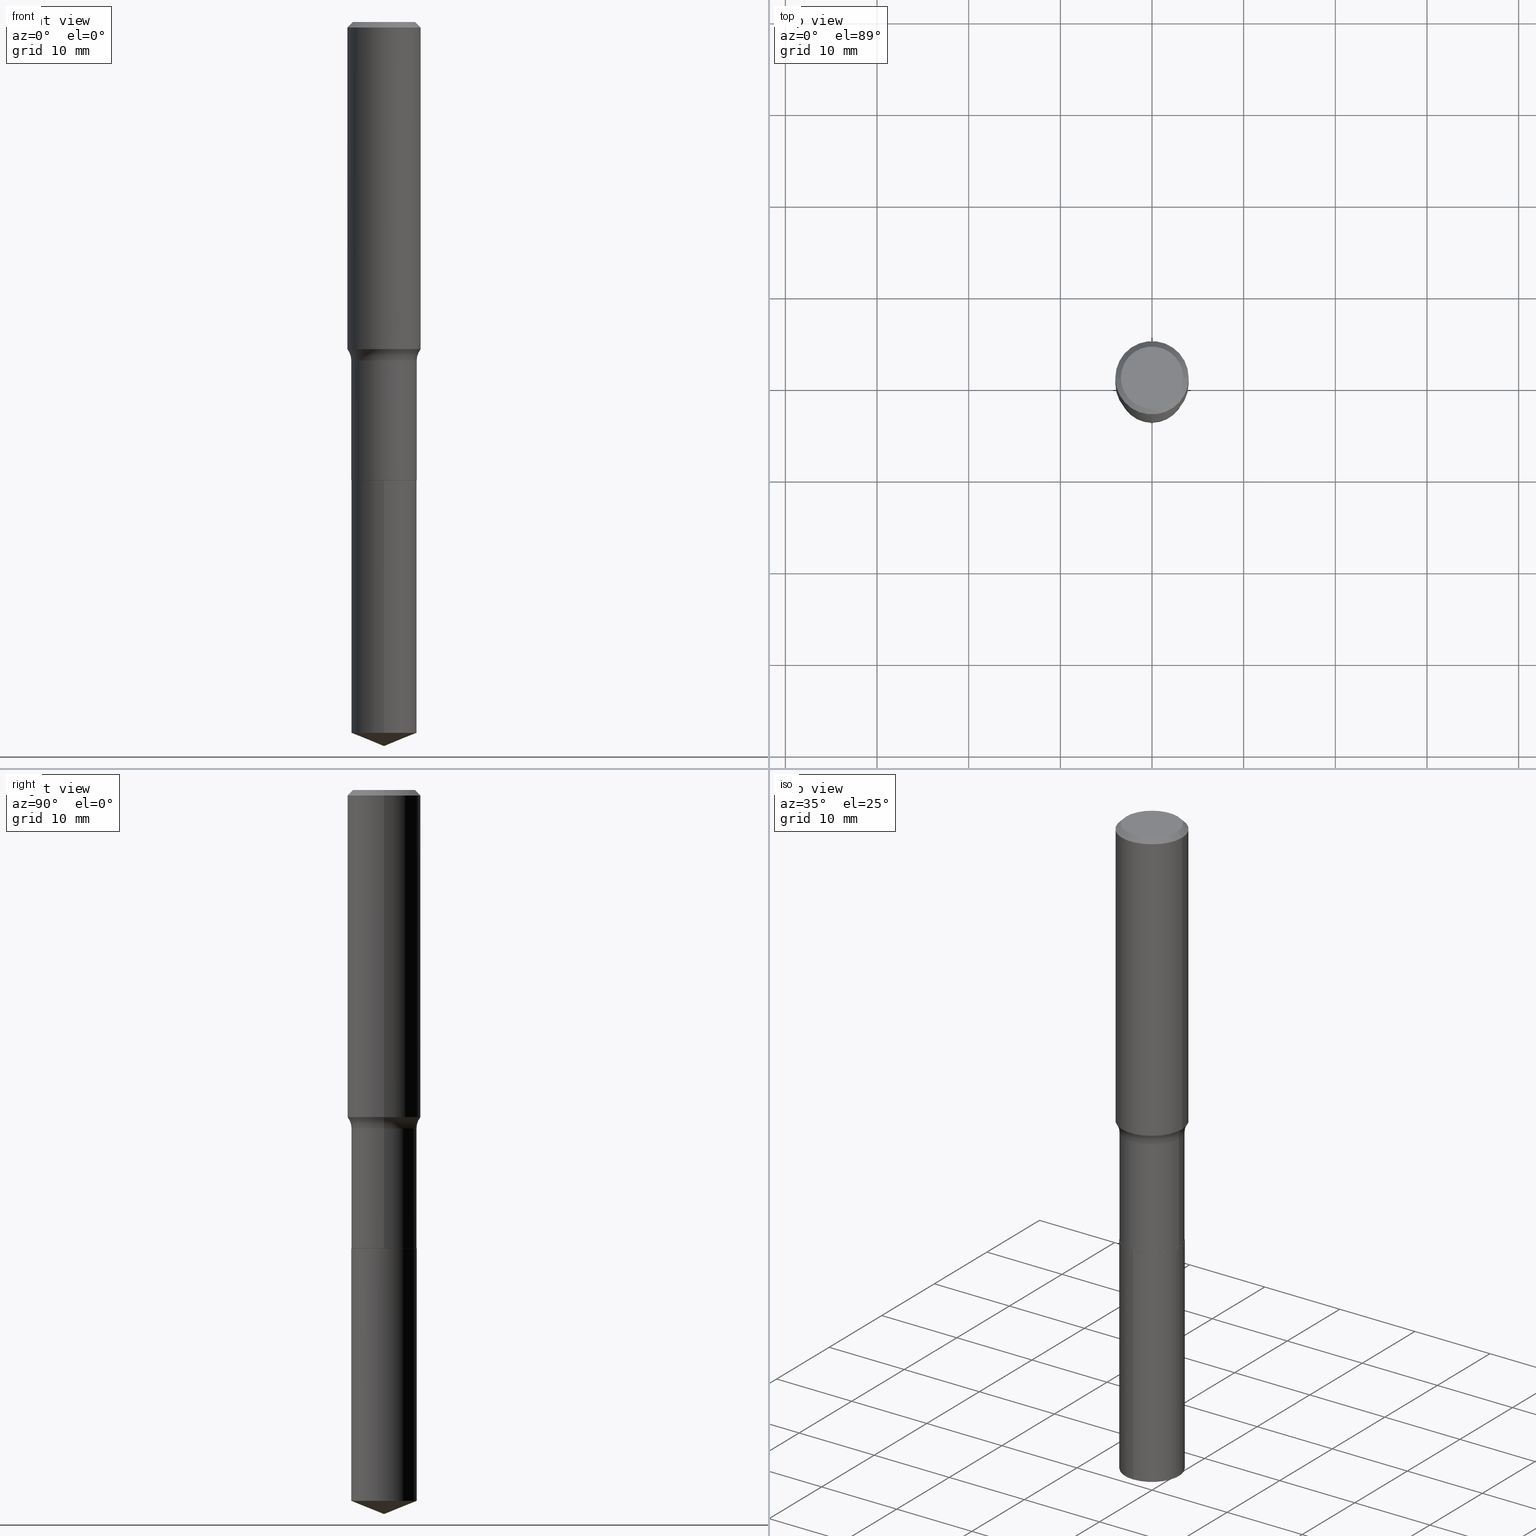
[diagram: canonical four-view strip — front | top / right | iso, engineering-drawing reading convention]
A machine part, canonical four-view strip (front | top / right | iso — engineering-drawing reading convention). The complete STEP part file that produces these views, byte-faithful:
ISO-10303-21;
HEADER;
FILE_DESCRIPTION (( 'STEP AP203' ),
    '1' );
FILE_NAME ('56813.STEP',
    '2024-04-19T14:04:00',
    ( '' ),
    ( '' ),
    'SwSTEP 2.0',
    'SolidWorks 2023',
    '' );
FILE_SCHEMA (( 'CONFIG_CONTROL_DESIGN' ));
ENDSEC;

DATA;
#1 = DIRECTION ( 'NONE',  ( 1.000000000000000000, -6.982962677686267499E-15, 0.000000000000000000 ) ) ;
#2 = ORIENTED_EDGE ( 'NONE', *, *, #280, .T. ) ;
#3 = EDGE_CURVE ( 'NONE', #472, #231, #437, .T. ) ;
#4 = CARTESIAN_POINT ( 'NONE',  ( -0.1575000000000000844, 1.119104808822158392E-15, -7.747322767151481189E-30 ) ) ;
#5 = CARTESIAN_POINT ( 'NONE',  ( 4.812682610572349594E-29, -6.871235274843310993E-15, -1.968000000000000194 ) ) ;
#6 = CARTESIAN_POINT ( 'NONE',  ( 0.1401000000000000023, -7.851294086656578595E-15, -1.968500000000000139 ) ) ;
#7 = CC_DESIGN_PERSON_AND_ORGANIZATION_ASSIGNMENT ( #389, #213, ( #390 ) ) ;
#8 = DIRECTION ( 'NONE',  ( -6.982962677686265133E-15, -1.000000000000000000, 3.885985766236505386E-15 ) ) ;
#9 = CYLINDRICAL_SURFACE ( 'NONE', #411, 0.1405999999999999195 ) ;
#10 = AXIS2_PLACEMENT_3D ( 'NONE', #368, #170, #314 ) ;
#11 = CYLINDRICAL_SURFACE ( 'NONE', #265, 0.1575000000000000844 ) ;
#12 =( NAMED_UNIT ( * ) SI_UNIT ( $, .STERADIAN. ) SOLID_ANGLE_UNIT ( ) );
#13 = ADVANCED_FACE ( 'NONE', ( #335 ), #242, .T. ) ;
#14 = CARTESIAN_POINT ( 'NONE',  ( 7.606199973684467917E-29, -1.085877626232486775E-14, -3.110199999999999854 ) ) ;
#15 = CYLINDRICAL_SURFACE ( 'NONE', #225, 0.1406000000000000028 ) ;
#16 = CARTESIAN_POINT ( 'NONE',  ( 4.813905344975441835E-29, -6.872981015512731707E-15, -1.968500000000000139 ) ) ;
#17 = CARTESIAN_POINT ( 'NONE',  ( 7.605817445465833005E-29, -1.085931930268317157E-14, -3.110199999999999854 ) ) ;
#18 = AXIS2_PLACEMENT_3D ( 'NONE', #429, #223, #168 ) ;
#19 = AXIS2_PLACEMENT_3D ( 'NONE', #16, #423, #88 ) ;
#20 = EDGE_LOOP ( 'NONE', ( #181, #186, #403, #183 ) ) ;
#21 = EDGE_CURVE ( 'NONE', #33, #302, #339, .T. ) ;
#22 = ORIENTED_EDGE ( 'NONE', *, *, #255, .T. ) ;
#23 = TOROIDAL_SURFACE ( 'NONE', #409, 0.2185999999999999610, 0.07800000000000006928 ) ;
#24 = CARTESIAN_POINT ( 'NONE',  ( 0.1338749999999999940, -1.040731925365424925E-15, 4.101342130351393887E-18 ) ) ;
#25 = PRODUCT_DEFINITION_FORMATION_WITH_SPECIFIED_SOURCE ( 'ANY', '', #390, .NOT_KNOWN. ) ;
#26 = EDGE_LOOP ( 'NONE', ( #268, #342, #322, #232 ) ) ;
#27 = CARTESIAN_POINT ( 'NONE',  ( 5.777420054612421104E-31, -8.248624663016984002E-17, -0.02362500000000014588 ) ) ;
#28 = EDGE_CURVE ( 'NONE', #302, #480, #446, .T. ) ;
#29 = ORIENTED_EDGE ( 'NONE', *, *, #294, .F. ) ;
#30 = ORIENTED_EDGE ( 'NONE', *, *, #212, .F. ) ;
#31 = CARTESIAN_POINT ( 'NONE',  ( 0.1575000000000000844, -1.099816621735587677E-15, 7.679978421878603638E-30 ) ) ;
#32 = VECTOR ( 'NONE', #92, 39.37007874015748143 ) ;
#33 = VERTEX_POINT ( 'NONE', #173 ) ;
#34 = COORDINATED_UNIVERSAL_TIME_OFFSET ( 5, 0, .BEHIND. ) ;
#35 = ORIENTED_EDGE ( 'NONE', *, *, #371, .T. ) ;
#36 = DIRECTION ( 'NONE',  ( -1.000000000000000000, 6.982962677686265922E-15, -4.876176775795935793E-29 ) ) ;
#37 = PERSON_AND_ORGANIZATION ( #109, #341 ) ;
#38 = DIRECTION ( 'NONE',  ( -2.445468806185136597E-29, 3.491481338843145583E-15, 1.000000000000000000 ) ) ;
#39 = DIRECTION ( 'NONE',  ( -2.445468806185136597E-29, 3.491481338843145583E-15, 1.000000000000000000 ) ) ;
#40 = DIRECTION ( 'NONE',  ( 1.000000000000000000, -6.982962677686265922E-15, 0.000000000000000000 ) ) ;
#41 = ORIENTED_EDGE ( 'NONE', *, *, #467, .T. ) ;
#42 = DIRECTION ( 'NONE',  ( -2.445468806185136597E-29, 3.491481338843145583E-15, 1.000000000000000000 ) ) ;
#43 = CIRCLE ( 'NONE', #135, 0.07800000000000006928 ) ;
#44 = AXIS2_PLACEMENT_3D ( 'NONE', #430, #245, #55 ) ;
#45 = DIRECTION ( 'NONE',  ( 1.000000000000000000, -6.982962677686266711E-15, 0.000000000000000000 ) ) ;
#46 = ADVANCED_FACE ( 'NONE', ( #201 ), #9, .T. ) ;
#47 = DIRECTION ( 'NONE',  ( -6.982962677686265133E-15, -1.000000000000000000, 3.498761904101806258E-15 ) ) ;
#48 = CARTESIAN_POINT ( 'NONE',  ( -9.818045524826407881E-16, -0.1406000000000068861, -1.968499999999999472 ) ) ;
#49 = AXIS2_PLACEMENT_3D ( 'NONE', #236, #316, #1 ) ;
#50 = VECTOR ( 'NONE', #269, 39.37007874015748143 ) ;
#51 = CIRCLE ( 'NONE', #18, 0.07800000000000006928 ) ;
#52 = CARTESIAN_POINT ( 'NONE',  ( 4.813905344975441835E-29, -6.872981015512731707E-15, -1.968500000000000139 ) ) ;
#53 = APPROVAL_STATUS ( 'not_yet_approved' ) ;
#54 = DIRECTION ( 'NONE',  ( -2.445468806185136597E-29, 3.491481338843145583E-15, 1.000000000000000000 ) ) ;
#55 = DIRECTION ( 'NONE',  ( 6.982962677686265922E-15, 1.000000000000000000, -3.491343406316271443E-15 ) ) ;
#56 = DIRECTION ( 'NONE',  ( -2.445468806185136597E-29, 3.491481338843145583E-15, 1.000000000000000000 ) ) ;
#57 = VECTOR ( 'NONE', #345, 39.37007874015748143 ) ;
#58 = EDGE_CURVE ( 'NONE', #231, #488, #200, .T. ) ;
#59 = ORIENTED_EDGE ( 'NONE', *, *, #398, .T. ) ;
#60 = ORIENTED_EDGE ( 'NONE', *, *, #235, .F. ) ;
#61 = DIRECTION ( 'NONE',  ( 1.000000000000000000, 0.000000000000000000, 0.000000000000000000 ) ) ;
#62 = ORIENTED_EDGE ( 'NONE', *, *, #220, .T. ) ;
#63 = MANIFOLD_SOLID_BREP ( 'Body-Move/Copy2[1]', #146 ) ;
#64 = EDGE_CURVE ( 'NONE', #33, #149, #247, .T. ) ;
#65 = AXIS2_PLACEMENT_3D ( 'NONE', #159, #308, #45 ) ;
#66 = FACE_OUTER_BOUND ( 'NONE', #375, .T. ) ;
#67 = MANIFOLD_SOLID_BREP ( 'Body-Move/Copy2[2]', #385 ) ;
#68 = ORIENTED_EDGE ( 'NONE', *, *, #235, .T. ) ;
#69 = DATE_AND_TIME ( #334, #373 ) ;
#70 = ORIENTED_EDGE ( 'NONE', *, *, #122, .F. ) ;
#71 = SHAPE_DEFINITION_REPRESENTATION ( #244, #263 ) ;
#72 = ORIENTED_EDGE ( 'NONE', *, *, #280, .F. ) ;
#73 = CALENDAR_DATE ( 2024, 19, 4 ) ;
#74 = EDGE_LOOP ( 'NONE', ( #487, #264, #62, #72 ) ) ;
#75 = CC_DESIGN_PERSON_AND_ORGANIZATION_ASSIGNMENT ( #105, #120, ( #25 ) ) ;
#76 = CIRCLE ( 'NONE', #49, 0.1575000000000001676 ) ;
#77 = ORIENTED_EDGE ( 'NONE', *, *, #398, .F. ) ;
#78 = EDGE_CURVE ( 'NONE', #472, #360, #311, .T. ) ;
#79 = CARTESIAN_POINT ( 'NONE',  ( -0.1405999999999999195, 9.990230864787002893E-16, -6.916022736898393535E-30 ) ) ;
#80 = CARTESIAN_POINT ( 'NONE',  ( 0.1401000000000000023, -7.851294086656578595E-15, -1.968500000000000139 ) ) ;
#81 = DIRECTION ( 'NONE',  ( -2.445468806185136597E-29, 3.491481338843145583E-15, 1.000000000000000000 ) ) ;
#82 = EDGE_CURVE ( 'NONE', #378, #197, #460, .T. ) ;
#83 = DIRECTION ( 'NONE',  ( -2.445468806185136597E-29, 3.491481338843145583E-15, 1.000000000000000000 ) ) ;
#84 = LINE ( 'NONE', #4, #57 ) ;
#85 = CIRCLE ( 'NONE', #156, 0.1401000000000000023 ) ;
#86 = CARTESIAN_POINT ( 'NONE',  ( 4.813905344975441835E-29, -6.872981015512731707E-15, -1.968500000000000139 ) ) ;
#87 = DIRECTION ( 'NONE',  ( -0.7071067811865451302, 2.468850131082231817E-15, -0.7071067811865499042 ) ) ;
#88 = DIRECTION ( 'NONE',  ( -6.982962677686265133E-15, -1.000000000000000000, 3.885985766236505386E-15 ) ) ;
#89 = CARTESIAN_POINT ( 'NONE',  ( 4.813905344975441835E-29, -6.872981015512731707E-15, -1.968500000000000139 ) ) ;
#90 = MECHANICAL_CONTEXT ( 'NONE', #239, 'mechanical' ) ;
#91 = CIRCLE ( 'NONE', #362, 0.1401000000000000023 ) ;
#92 = DIRECTION ( 'NONE',  ( 0.7071067811865451302, -7.319954787623248157E-15, -0.7071067811865499042 ) ) ;
#93 = LINE ( 'NONE', #17, #154 ) ;
#94 = DIRECTION ( 'NONE',  ( -2.445468806185136597E-29, 3.491481338843145583E-15, 1.000000000000000000 ) ) ;
#95 = CC_DESIGN_PERSON_AND_ORGANIZATION_ASSIGNMENT ( #37, #230, ( #250 ) ) ;
#96 = ORIENTED_EDGE ( 'NONE', *, *, #255, .F. ) ;
#97 = VECTOR ( 'NONE', #221, 39.37007874015748143 ) ;
#98 = ORIENTED_EDGE ( 'NONE', *, *, #287, .F. ) ;
#99 = EDGE_LOOP ( 'NONE', ( #248, #30, #306, #408 ) ) ;
#100 = ADVANCED_FACE ( 'NONE', ( #128 ), #215, .T. ) ;
#101 = DIRECTION ( 'NONE',  ( -2.445565123953856733E-29, 3.491343406316271443E-15, 1.000000000000000000 ) ) ;
#102 = CARTESIAN_POINT ( 'NONE',  ( 4.813905344975441835E-29, -6.872981015512731707E-15, -1.968500000000000139 ) ) ;
#103 = ORIENTED_EDGE ( 'NONE', *, *, #287, .T. ) ;
#104 = AXIS2_PLACEMENT_3D ( 'NONE', #450, #38, #110 ) ;
#105 = PERSON_AND_ORGANIZATION ( #109, #341 ) ;
#106 = LOCAL_TIME ( 10, 4, 0.000000000000000000, #483 ) ;
#107 = ORIENTED_EDGE ( 'NONE', *, *, #3, .F. ) ;
#108 = CALENDAR_DATE ( 2024, 19, 4 ) ;
#109 = PERSON ( 'UNSPECIFIED', 'UNSPECIFIED', 'UNSPECIFIED', ('UNSPECIFIED'), ('UNSPECIFIED'), ('UNSPECIFIED') ) ;
#110 = DIRECTION ( 'NONE',  ( 1.000000000000000000, -6.982962677686266711E-15, 4.876170806578254279E-29 ) ) ;
#111 = DATE_AND_TIME ( #192, #106 ) ;
#112 = APPROVAL ( #404, 'UNSPECIFIED' ) ;
#113 = ORIENTED_EDGE ( 'NONE', *, *, #414, .T. ) ;
#114 = VECTOR ( 'NONE', #140, 39.37007874015748143 ) ;
#115 = CIRCLE ( 'NONE', #438, 0.1405999999999999195 ) ;
#116 = ORIENTED_EDGE ( 'NONE', *, *, #220, .F. ) ;
#117 = LINE ( 'NONE', #126, #50 ) ;
#118 = AXIS2_PLACEMENT_3D ( 'NONE', #134, #54, #172 ) ;
#119 = DIRECTION ( 'NONE',  ( 1.000000000000000000, -6.982962677686269077E-15, 0.000000000000000000 ) ) ;
#120 = PERSON_AND_ORGANIZATION_ROLE ( 'creator' ) ;
#121 = ORIENTED_EDGE ( 'NONE', *, *, #21, .F. ) ;
#122 = EDGE_CURVE ( 'NONE', #397, #378, #388, .T. ) ;
#123 = CARTESIAN_POINT ( 'NONE',  ( -0.1401000000000000023, -5.874861415538720918E-15, -1.968500000000000139 ) ) ;
#124 = ORIENTED_EDGE ( 'NONE', *, *, #78, .F. ) ;
#125 = DIRECTION ( 'NONE',  ( 1.000000000000000000, -6.982962677686269077E-15, 0.000000000000000000 ) ) ;
#126 = CARTESIAN_POINT ( 'NONE',  ( 0.1405999999999999195, -9.818045524826887114E-16, 6.855904546769082070E-30 ) ) ;
#127 = AXIS2_PLACEMENT_3D ( 'NONE', #459, #233, #47 ) ;
#128 = FACE_OUTER_BOUND ( 'NONE', #363, .T. ) ;
#129 = FACE_OUTER_BOUND ( 'NONE', #259, .T. ) ;
#130 = PRODUCT_RELATED_PRODUCT_CATEGORY ( 'detail', '', ( #390 ) ) ;
#131 = DIRECTION ( 'NONE',  ( -2.445468806185136597E-29, 3.491481338843145583E-15, 1.000000000000000000 ) ) ;
#132 = CARTESIAN_POINT ( 'NONE',  ( 0.000000000000000000, 0.000000000000000000, 0.000000000000000000 ) ) ;
#133 = DIRECTION ( 'NONE',  ( -2.445565123953856733E-29, 3.491343406316271443E-15, 1.000000000000000000 ) ) ;
#134 = CARTESIAN_POINT ( 'NONE',  ( 5.777420054612421104E-31, -8.248624663016984002E-17, -0.02362500000000014588 ) ) ;
#135 = AXIS2_PLACEMENT_3D ( 'NONE', #251, #281, #209 ) ;
#136 = EDGE_CURVE ( 'NONE', #397, #443, #276, .T. ) ;
#137 = AXIS2_PLACEMENT_3D ( 'NONE', #469, #94, #285 ) ;
#138 = CIRCLE ( 'NONE', #226, 0.1575000000000001676 ) ;
#139 = EDGE_LOOP ( 'NONE', ( #144, #210, #228, #116 ) ) ;
#140 = DIRECTION ( 'NONE',  ( -0.7071067811865957564, 7.493145998870527710E-15, 0.7071067811864992780 ) ) ;
#141 = CARTESIAN_POINT ( 'NONE',  ( 0.1405999999999999195, -6.057720122892853253E-15, -1.453799999999999981 ) ) ;
#142 = ADVANCED_FACE ( 'NONE', ( #351 ), #15, .T. ) ;
#143 = ORIENTED_EDGE ( 'NONE', *, *, #414, .F. ) ;
#144 = ORIENTED_EDGE ( 'NONE', *, *, #212, .T. ) ;
#145 = PERSON_AND_ORGANIZATION_ROLE ( 'design_supplier' ) ;
#146 = CLOSED_SHELL ( 'NONE', ( #426, #328, #367, #142, #489 ) ) ;
#147 = EDGE_LOOP ( 'NONE', ( #332, #325, #70 ) ) ;
#148 = ADVANCED_FACE ( 'NONE', ( #203 ), #11, .T. ) ;
#149 = VERTEX_POINT ( 'NONE', #241 ) ;
#150 = PERSON_AND_ORGANIZATION ( #109, #341 ) ;
#151 = ORIENTED_EDGE ( 'NONE', *, *, #294, .T. ) ;
#152 = CARTESIAN_POINT ( 'NONE',  ( 3.436654127132461925E-29, -4.906631285826703729E-15, -1.405315053882673304 ) ) ;
#153 = DESIGN_CONTEXT ( 'detailed design', #440, 'design' ) ;
#154 = VECTOR ( 'NONE', #175, 39.37007874015748143 ) ;
#155 = ADVANCED_FACE ( 'NONE', ( #387 ), #477, .T. ) ;
#156 = AXIS2_PLACEMENT_3D ( 'NONE', #86, #42, #164 ) ;
#157 = ORIENTED_EDGE ( 'NONE', *, *, #78, .T. ) ;
#158 = DIRECTION ( 'NONE',  ( 1.000000000000000000, -6.982962677686267499E-15, 4.876176775795936353E-29 ) ) ;
#159 = CARTESIAN_POINT ( 'NONE',  ( 4.812682610572349594E-29, -6.871235274843310993E-15, -1.968000000000000194 ) ) ;
#160 = ORIENTED_EDGE ( 'NONE', *, *, #64, .T. ) ;
#161 = PLANE ( 'NONE',  #166 ) ;
#162 = CARTESIAN_POINT ( 'NONE',  ( 4.813905344975441835E-29, -6.872981015512731707E-15, -1.968500000000000139 ) ) ;
#163 = DIRECTION ( 'NONE',  ( 1.000000000000000000, -6.982962677686266711E-15, 0.000000000000000000 ) ) ;
#164 = DIRECTION ( 'NONE',  ( 1.000000000000000000, -6.982962677686269077E-15, 0.000000000000000000 ) ) ;
#165 = FACE_OUTER_BOUND ( 'NONE', #293, .T. ) ;
#166 = AXIS2_PLACEMENT_3D ( 'NONE', #303, #461, #36 ) ;
#167 = EDGE_CURVE ( 'NONE', #211, #302, #51, .T. ) ;
#168 = DIRECTION ( 'NONE',  ( -1.000000000000000000, 7.105427357601005014E-15, 0.000000000000000000 ) ) ;
#169 = CARTESIAN_POINT ( 'NONE',  ( 0.000000000000000000, 0.000000000000000000, 0.000000000000000000 ) ) ;
#170 = DIRECTION ( 'NONE',  ( -2.445468806185136597E-29, 3.491481338843145583E-15, 1.000000000000000000 ) ) ;
#171 = CARTESIAN_POINT ( 'NONE',  ( 7.606196648521285483E-29, -1.085877626232486775E-14, -3.110199999999999854 ) ) ;
#172 = DIRECTION ( 'NONE',  ( 1.000000000000000000, -6.982962677686265922E-15, 0.000000000000000000 ) ) ;
#173 = CARTESIAN_POINT ( 'NONE',  ( -0.1405999999999999750, -4.974552336148037872E-15, -1.968000000000000194 ) ) ;
#174 = EDGE_CURVE ( 'NONE', #456, #397, #240, .T. ) ;
#175 = DIRECTION ( 'NONE',  ( -6.474490251793184940E-15, -0.9271838545667872022, 0.3746065934159125144 ) ) ;
#176 = AXIS2_PLACEMENT_3D ( 'NONE', #5, #206, #163 ) ;
#177 = CONICAL_SURFACE ( 'NONE', #127, 97.44436430772901758, 1.186823891356147076 ) ;
#178 = CIRCLE ( 'NONE', #295, 0.1406000000000000028 ) ;
#179 = CIRCLE ( 'NONE', #386, 0.1338749999999999940 ) ;
#180 = DIRECTION ( 'NONE',  ( -1.000000000000000000, 6.982962677686265922E-15, 0.000000000000000000 ) ) ;
#181 = ORIENTED_EDGE ( 'NONE', *, *, #338, .F. ) ;
#182 = LINE ( 'NONE', #333, #114 ) ;
#183 = ORIENTED_EDGE ( 'NONE', *, *, #301, .F. ) ;
#184 = EDGE_CURVE ( 'NONE', #360, #488, #304, .T. ) ;
#185 = AXIS2_PLACEMENT_3D ( 'NONE', #413, #275, #158 ) ;
#186 = ORIENTED_EDGE ( 'NONE', *, *, #167, .T. ) ;
#187 = DIRECTION ( 'NONE',  ( 6.588037525764796813E-15, 0.9271838545667896447, 0.3746065934159060196 ) ) ;
#188 = ORIENTED_EDGE ( 'NONE', *, *, #28, .F. ) ;
#189 = CARTESIAN_POINT ( 'NONE',  ( 9.990230864787750338E-16, 0.1405999999999893169, -3.053393912647578201 ) ) ;
#190 = DIRECTION ( 'NONE',  ( -2.445468806185136877E-29, 3.491481338843145188E-15, 1.000000000000000000 ) ) ;
#191 = ADVANCED_FACE ( 'NONE', ( #435 ), #319, .T. ) ;
#192 = CALENDAR_DATE ( 2024, 19, 4 ) ;
#193 = CARTESIAN_POINT ( 'NONE',  ( 5.777420054612421104E-31, -8.248624663016984002E-17, -0.02362500000000014588 ) ) ;
#194 = DIRECTION ( 'NONE',  ( 0.7071067811865957564, -2.468850131082761932E-15, 0.7071067811864992780 ) ) ;
#195 = COORDINATED_UNIVERSAL_TIME_OFFSET ( 5, 0, .BEHIND. ) ;
#196 = VECTOR ( 'NONE', #87, 39.37007874015748143 ) ;
#197 = VERTEX_POINT ( 'NONE', #246 ) ;
#198 = CARTESIAN_POINT ( 'NONE',  ( 3.555222550431950890E-29, -5.075915570410163358E-15, -1.453799999999999759 ) ) ;
#199 = CARTESIAN_POINT ( 'NONE',  ( 0.1575000000000001676, -6.006447907562292787E-15, -1.405315053882673304 ) ) ;
#200 = LINE ( 'NONE', #344, #196 ) ;
#201 = FACE_OUTER_BOUND ( 'NONE', #490, .T. ) ;
#202 = ADVANCED_FACE ( 'NONE', ( #431 ), #23, .F. ) ;
#203 = FACE_OUTER_BOUND ( 'NONE', #74, .T. ) ;
#204 = CARTESIAN_POINT ( 'NONE',  ( 9.990230864787756255E-16, 0.1405999999999931471, -1.968500000000000583 ) ) ;
#205 = AXIS2_PLACEMENT_3D ( 'NONE', #27, #383, #180 ) ;
#206 = DIRECTION ( 'NONE',  ( -2.445468806185136597E-29, 3.491481338843145583E-15, 1.000000000000000000 ) ) ;
#207 = EDGE_CURVE ( 'NONE', #456, #378, #93, .T. ) ;
#208 = CARTESIAN_POINT ( 'NONE',  ( 3.555222550431951451E-29, -5.075915570410164936E-15, -1.453799999999999981 ) ) ;
#209 = DIRECTION ( 'NONE',  ( 1.000000000000000000, -6.982962677686264344E-15, 0.000000000000000000 ) ) ;
#210 = ORIENTED_EDGE ( 'NONE', *, *, #377, .T. ) ;
#211 = VERTEX_POINT ( 'NONE', #380 ) ;
#212 = EDGE_CURVE ( 'NONE', #291, #211, #76, .T. ) ;
#213 = PERSON_AND_ORGANIZATION_ROLE ( 'design_owner' ) ;
#214 = ORIENTED_EDGE ( 'NONE', *, *, #3, .T. ) ;
#215 = CONICAL_SURFACE ( 'NONE', #326, 0.1401000000000000023, 0.7853981633975165577 ) ;
#216 = CC_DESIGN_APPROVAL ( #112, ( #484 ) ) ;
#217 = PERSON_AND_ORGANIZATION ( #109, #341 ) ;
#218 = VERTEX_POINT ( 'NONE', #123 ) ;
#219 = PERSON_AND_ORGANIZATION ( #109, #341 ) ;
#220 = EDGE_CURVE ( 'NONE', #291, #360, #457, .T. ) ;
#221 = DIRECTION ( 'NONE',  ( -2.445468806185136877E-29, 3.491481338843145188E-15, 1.000000000000000000 ) ) ;
#222 = COORDINATED_UNIVERSAL_TIME_OFFSET ( 5, 0, .BEHIND. ) ;
#223 = DIRECTION ( 'NONE',  ( 7.105427357601001859E-15, 1.000000000000000000, -3.491481338843145583E-15 ) ) ;
#224 = ORIENTED_EDGE ( 'NONE', *, *, #184, .T. ) ;
#225 = AXIS2_PLACEMENT_3D ( 'NONE', #391, #465, #382 ) ;
#226 = AXIS2_PLACEMENT_3D ( 'NONE', #152, #39, #453 ) ;
#227 = SECURITY_CLASSIFICATION_LEVEL ( 'unclassified' ) ;
#228 = ORIENTED_EDGE ( 'NONE', *, *, #184, .F. ) ;
#229 = DIRECTION ( 'NONE',  ( 1.000000000000000000, -6.982962677686267499E-15, 4.883557194083113462E-29 ) ) ;
#230 = PERSON_AND_ORGANIZATION_ROLE ( 'creator' ) ;
#231 = VERTEX_POINT ( 'NONE', #478 ) ;
#232 = ORIENTED_EDGE ( 'NONE', *, *, #467, .F. ) ;
#233 = DIRECTION ( 'NONE',  ( -2.445565123953856733E-29, 3.491343406316271443E-15, 1.000000000000000000 ) ) ;
#234 = LINE ( 'NONE', #6, #410 ) ;
#235 = EDGE_CURVE ( 'NONE', #218, #33, #182, .T. ) ;
#236 = CARTESIAN_POINT ( 'NONE',  ( 3.436654127132461925E-29, -4.906631285826703729E-15, -1.405315053882673304 ) ) ;
#237 = DIRECTION ( 'NONE',  ( -2.445565123953856733E-29, 3.491343406316271443E-15, 1.000000000000000000 ) ) ;
#238 = PLANE ( 'NONE',  #402 ) ;
#239 = APPLICATION_CONTEXT ( 'configuration controlled 3d designs of mechanical parts and assemblies' ) ;
#240 = LINE ( 'NONE', #14, #355 ) ;
#241 = CARTESIAN_POINT ( 'NONE',  ( 0.1405999999999999750, -7.853039827325999309E-15, -1.968000000000000194 ) ) ;
#242 = CONICAL_SURFACE ( 'NONE', #454, 0.1575000000000000011, 0.7853981633974449483 ) ;
#243 = CARTESIAN_POINT ( 'NONE',  ( 0.000000000000000000, 0.000000000000000000, 0.000000000000000000 ) ) ;
#244 = PRODUCT_DEFINITION_SHAPE ( 'NONE', 'NONE',  #250 ) ;
#245 = DIRECTION ( 'NONE',  ( 2.445565123953856452E-29, -3.491343406316271443E-15, -1.000000000000000000 ) ) ;
#246 = CARTESIAN_POINT ( 'NONE',  ( -9.818045524826407881E-16, -0.1406000000000068861, -1.968499999999999472 ) ) ;
#247 = CIRCLE ( 'NONE', #176, 0.1405999999999999750 ) ;
#248 = ORIENTED_EDGE ( 'NONE', *, *, #167, .F. ) ;
#249 = CC_DESIGN_APPROVAL ( #405, ( #25 ) ) ;
#250 = PRODUCT_DEFINITION ( 'UNKNOWN', '', #25, #153 ) ;
#251 = CARTESIAN_POINT ( 'NONE',  ( 0.2185999999999999610, -6.602391211752381299E-15, -1.453799999999999759 ) ) ;
#252 = LENGTH_MEASURE_WITH_UNIT ( LENGTH_MEASURE( 0.02539999999999999897 ), #290 );
#253 = DIRECTION ( 'NONE',  ( -6.982962677686265133E-15, -1.000000000000000000, 3.885985766236505386E-15 ) ) ;
#254 = AXIS2_PLACEMENT_3D ( 'NONE', #198, #381, #229 ) ;
#255 = EDGE_CURVE ( 'NONE', #378, #397, #178, .T. ) ;
#256 = DIRECTION ( 'NONE',  ( -2.445468806185136597E-29, 3.491481338843145583E-15, 1.000000000000000000 ) ) ;
#257 = CONICAL_SURFACE ( 'NONE', #205, 0.1575000000000000011, 0.7853981633974449483 ) ;
#258 = DATE_TIME_ROLE ( 'classification_date' ) ;
#259 = EDGE_LOOP ( 'NONE', ( #452, #214 ) ) ;
#260 = PERSON_AND_ORGANIZATION_ROLE ( 'classification_officer' ) ;
#261 = DIRECTION ( 'NONE',  ( -1.000000000000000000, 6.982962677686265922E-15, 0.000000000000000000 ) ) ;
#262 = COORDINATED_UNIVERSAL_TIME_OFFSET ( 5, 0, .BEHIND. ) ;
#263 = ADVANCED_BREP_SHAPE_REPRESENTATION ( '56813', ( #63, #67, #462 ), #471 ) ;
#264 = ORIENTED_EDGE ( 'NONE', *, *, #338, .T. ) ;
#265 = AXIS2_PLACEMENT_3D ( 'NONE', #169, #131, #279 ) ;
#266 = CONICAL_SURFACE ( 'NONE', #312, 97.44436430772901758, 1.186823891356147076 ) ;
#267 = VECTOR ( 'NONE', #237, 39.37007874015748143 ) ;
#268 = ORIENTED_EDGE ( 'NONE', *, *, #136, .F. ) ;
#269 = DIRECTION ( 'NONE',  ( -2.445468806185136877E-29, 3.491481338843145188E-15, 1.000000000000000000 ) ) ;
#270 = APPROVAL_STATUS ( 'not_yet_approved' ) ;
#271 = ORIENTED_EDGE ( 'NONE', *, *, #371, .F. ) ;
#272 = FACE_OUTER_BOUND ( 'NONE', #370, .T. ) ;
#273 = ORIENTED_EDGE ( 'NONE', *, *, #58, .T. ) ;
#274 = EDGE_CURVE ( 'NONE', #218, #406, #91, .T. ) ;
#275 = DIRECTION ( 'NONE',  ( -2.445468806185136597E-29, 3.491481338843145583E-15, 1.000000000000000000 ) ) ;
#276 = LINE ( 'NONE', #422, #267 ) ;
#277 = DIRECTION ( 'NONE',  ( -6.982962677686265133E-15, -1.000000000000000000, 3.885985766236505386E-15 ) ) ;
#278 = CARTESIAN_POINT ( 'NONE',  ( 5.777420054612421104E-31, -8.248624663016984002E-17, -0.02362500000000014588 ) ) ;
#279 = DIRECTION ( 'NONE',  ( 1.000000000000000000, -6.982962677686267499E-15, 4.876176775795936353E-29 ) ) ;
#280 = EDGE_CURVE ( 'NONE', #488, #360, #427, .T. ) ;
#281 = DIRECTION ( 'NONE',  ( -6.982962677686266711E-15, -1.000000000000000000, 3.491481338843145583E-15 ) ) ;
#282 = DIRECTION ( 'NONE',  ( -2.445565123953856733E-29, 3.491343406316271443E-15, 1.000000000000000000 ) ) ;
#283 = CIRCLE ( 'NONE', #65, 0.1405999999999999750 ) ;
#284 = DIRECTION ( 'NONE',  ( -2.445468806185136597E-29, 3.491481338843145583E-15, 1.000000000000000000 ) ) ;
#285 = DIRECTION ( 'NONE',  ( 1.000000000000000000, -6.982962677686268288E-15, 4.876176775795935793E-29 ) ) ;
#286 = ORIENTED_EDGE ( 'NONE', *, *, #473, .F. ) ;
#287 = EDGE_CURVE ( 'NONE', #149, #33, #283, .T. ) ;
#288 = AXIS2_PLACEMENT_3D ( 'NONE', #52, #317, #466 ) ;
#289 = AXIS2_PLACEMENT_3D ( 'NONE', #102, #133, #277 ) ;
#290 =( LENGTH_UNIT ( ) NAMED_UNIT ( * ) SI_UNIT ( $, .METRE. ) );
#291 = VERTEX_POINT ( 'NONE', #199 ) ;
#292 = CARTESIAN_POINT ( 'NONE',  ( -0.1575000000000000011, -1.375453957406277973E-15, -0.02362500000000014588 ) ) ;
#293 = EDGE_LOOP ( 'NONE', ( #337, #439, #96 ) ) ;
#294 = EDGE_CURVE ( 'NONE', #197, #443, #350, .T. ) ;
#295 = AXIS2_PLACEMENT_3D ( 'NONE', #441, #101, #253 ) ;
#296 = LOCAL_TIME ( 10, 4, 0.000000000000000000, #34 ) ;
#297 = APPROVAL_ROLE ( '' ) ;
#298 = EDGE_LOOP ( 'NONE', ( #107, #157, #224, #330 ) ) ;
#299 = PERSON_AND_ORGANIZATION ( #109, #341 ) ;
#300 = ORIENTED_EDGE ( 'NONE', *, *, #64, .F. ) ;
#301 = EDGE_CURVE ( 'NONE', #291, #480, #43, .T. ) ;
#302 = VERTEX_POINT ( 'NONE', #432 ) ;
#303 = CARTESIAN_POINT ( 'NONE',  ( -5.014852121625167883E-47, 7.159879756154482429E-33, 2.050671065172242981E-18 ) ) ;
#304 = CIRCLE ( 'NONE', #118, 0.1575000000000000011 ) ;
#305 = DATE_TIME_ROLE ( 'creation_date' ) ;
#306 = ORIENTED_EDGE ( 'NONE', *, *, #301, .T. ) ;
#307 = DIRECTION ( 'NONE',  ( -2.445565123953856733E-29, 3.491343406316271443E-15, 1.000000000000000000 ) ) ;
#308 = DIRECTION ( 'NONE',  ( -2.445468806185136597E-29, 3.491481338843145583E-15, 1.000000000000000000 ) ) ;
#309 = ORIENTED_EDGE ( 'NONE', *, *, #21, .T. ) ;
#310 = ADVANCED_FACE ( 'NONE', ( #357 ), #470, .F. ) ;
#311 = LINE ( 'NONE', #424, #32 ) ;
#312 = AXIS2_PLACEMENT_3D ( 'NONE', #313, #307, #343 ) ;
#313 = CARTESIAN_POINT ( 'NONE',  ( -8.867608444725277550E-28, 1.265954170330972176E-13, 36.25987874015748247 ) ) ;
#314 = DIRECTION ( 'NONE',  ( 1.000000000000000000, -6.982962677686269077E-15, 0.000000000000000000 ) ) ;
#315 =( CONVERSION_BASED_UNIT ( 'INCH', #252 ) LENGTH_UNIT ( ) NAMED_UNIT ( #434 ) );
#316 = DIRECTION ( 'NONE',  ( -2.445468806185136597E-29, 3.491481338843145583E-15, 1.000000000000000000 ) ) ;
#317 = DIRECTION ( 'NONE',  ( -2.445468806185136597E-29, 3.491481338843145583E-15, 1.000000000000000000 ) ) ;
#318 = DIRECTION ( 'NONE',  ( 1.000000000000000000, -6.982962677686266711E-15, 4.876170806578254279E-29 ) ) ;
#319 = CYLINDRICAL_SURFACE ( 'NONE', #137, 0.1405999999999999195 ) ;
#320 = DIRECTION ( 'NONE',  ( 1.000000000000000000, -6.982962677686268288E-15, 4.876176775795935793E-29 ) ) ;
#321 = CC_DESIGN_PERSON_AND_ORGANIZATION_ASSIGNMENT ( #299, #145, ( #25 ) ) ;
#322 = ORIENTED_EDGE ( 'NONE', *, *, #82, .T. ) ;
#323 = CARTESIAN_POINT ( 'NONE',  ( 4.813905344975441835E-29, -6.872981015512731707E-15, -1.968500000000000139 ) ) ;
#324 = VECTOR ( 'NONE', #190, 39.37007874015748143 ) ;
#325 = ORIENTED_EDGE ( 'NONE', *, *, #207, .T. ) ;
#326 = AXIS2_PLACEMENT_3D ( 'NONE', #89, #419, #125 ) ;
#327 = DIRECTION ( 'NONE',  ( -2.445468806185136597E-29, 3.491481338843145583E-15, 1.000000000000000000 ) ) ;
#328 = ADVANCED_FACE ( 'NONE', ( #165 ), #266, .T. ) ;
#329 = ORIENTED_EDGE ( 'NONE', *, *, #433, .F. ) ;
#330 = ORIENTED_EDGE ( 'NONE', *, *, #58, .F. ) ;
#331 = APPROVAL_ROLE ( '' ) ;
#332 = ORIENTED_EDGE ( 'NONE', *, *, #174, .F. ) ;
#333 = CARTESIAN_POINT ( 'NONE',  ( -0.1401000000000000023, -5.877510642712832119E-15, -1.968500000000000139 ) ) ;
#334 = CALENDAR_DATE ( 2024, 19, 4 ) ;
#335 = FACE_OUTER_BOUND ( 'NONE', #298, .T. ) ;
#336 = CC_DESIGN_DATE_AND_TIME_ASSIGNMENT ( #69, #305, ( #250 ) ) ;
#337 = ORIENTED_EDGE ( 'NONE', *, *, #207, .F. ) ;
#338 = EDGE_CURVE ( 'NONE', #211, #291, #138, .T. ) ;
#339 = LINE ( 'NONE', #79, #97 ) ;
#340 = FACE_OUTER_BOUND ( 'NONE', #139, .T. ) ;
#341 = ORGANIZATION ( 'UNSPECIFIED', 'UNSPECIFIED', '' ) ;
#342 = ORIENTED_EDGE ( 'NONE', *, *, #122, .T. ) ;
#343 = DIRECTION ( 'NONE',  ( -6.982962677686265133E-15, -1.000000000000000000, 3.498761904101806258E-15 ) ) ;
#344 = CARTESIAN_POINT ( 'NONE',  ( -0.1575000000000000011, 1.017330375105417098E-15, -0.02362500000000014588 ) ) ;
#345 = DIRECTION ( 'NONE',  ( -2.445468806185136877E-29, 3.491481338843145188E-15, 1.000000000000000000 ) ) ;
#346 = DIRECTION ( 'NONE',  ( -2.445565123953856733E-29, 3.491343406316271443E-15, 1.000000000000000000 ) ) ;
#347 = CARTESIAN_POINT ( 'NONE',  ( 7.467084060936199590E-29, -1.066071822398751254E-14, -3.053393912647577313 ) ) ;
#348 = CC_DESIGN_APPROVAL ( #356, ( #250 ) ) ;
#349 = DIRECTION ( 'NONE',  ( -2.445565123953856733E-29, 3.491343406316271443E-15, 1.000000000000000000 ) ) ;
#350 = CIRCLE ( 'NONE', #400, 0.1406000000000000028 ) ;
#351 = FACE_OUTER_BOUND ( 'NONE', #26, .T. ) ;
#352 = FACE_OUTER_BOUND ( 'NONE', #401, .T. ) ;
#353 = DIRECTION ( 'NONE',  ( -2.438088387897960049E-29, 3.491481338843145188E-15, 1.000000000000000000 ) ) ;
#354 = DIRECTION ( 'NONE',  ( 1.000000000000000000, -6.982962677686267499E-15, 4.883557194083113462E-29 ) ) ;
#355 = VECTOR ( 'NONE', #187, 39.37007874015748854 ) ;
#356 = APPROVAL ( #53, 'UNSPECIFIED' ) ;
#357 = FACE_OUTER_BOUND ( 'NONE', #99, .T. ) ;
#358 = UNCERTAINTY_MEASURE_WITH_UNIT (LENGTH_MEASURE( 1.000000000000000082E-05 ), #315, 'distance_accuracy_value', 'NONE');
#359 = ORIENTED_EDGE ( 'NONE', *, *, #274, .T. ) ;
#360 = VERTEX_POINT ( 'NONE', #464 ) ;
#361 = CYLINDRICAL_SURFACE ( 'NONE', #289, 0.1406000000000000028 ) ;
#362 = AXIS2_PLACEMENT_3D ( 'NONE', #444, #256, #119 ) ;
#363 = EDGE_LOOP ( 'NONE', ( #60, #359, #59, #300 ) ) ;
#364 = APPROVAL_PERSON_ORGANIZATION ( #217, #356, #297 ) ;
#365 = FACE_OUTER_BOUND ( 'NONE', #458, .T. ) ;
#366 = DATE_AND_TIME ( #415, #296 ) ;
#367 = ADVANCED_FACE ( 'NONE', ( #420 ), #177, .T. ) ;
#368 = CARTESIAN_POINT ( 'NONE',  ( 3.555222550431951451E-29, -5.075915570410164936E-15, -1.453799999999999981 ) ) ;
#369 = APPROVAL_DATE_TIME ( #449, #356 ) ;
#370 = EDGE_LOOP ( 'NONE', ( #22, #485, #29, #436 ) ) ;
#371 = EDGE_CURVE ( 'NONE', #406, #218, #85, .T. ) ;
#372 = AXIS2_PLACEMENT_3D ( 'NONE', #347, #282, #463 ) ;
#373 = LOCAL_TIME ( 10, 4, 0.000000000000000000, #195 ) ;
#374 = PERSON_AND_ORGANIZATION ( #109, #341 ) ;
#375 = EDGE_LOOP ( 'NONE', ( #271, #412 ) ) ;
#376 = EDGE_LOOP ( 'NONE', ( #35, #68, #98, #77 ) ) ;
#377 = EDGE_CURVE ( 'NONE', #211, #488, #84, .T. ) ;
#378 = VERTEX_POINT ( 'NONE', #417 ) ;
#379 = APPROVAL_PERSON_ORGANIZATION ( #374, #112, #331 ) ;
#380 = CARTESIAN_POINT ( 'NONE',  ( -0.1575000000000001676, -3.787526477004544548E-15, -1.405315053882673304 ) ) ;
#381 = DIRECTION ( 'NONE',  ( -2.445468806185136597E-29, 3.491481338843145583E-15, 1.000000000000000000 ) ) ;
#382 = DIRECTION ( 'NONE',  ( -6.982962677686265133E-15, -1.000000000000000000, 3.885985766236505386E-15 ) ) ;
#383 = DIRECTION ( 'NONE',  ( 2.445468806185136597E-29, -3.491481338843145583E-15, -1.000000000000000000 ) ) ;
#384 = CC_DESIGN_DATE_AND_TIME_ASSIGNMENT ( #111, #258, ( #484 ) ) ;
#385 = CLOSED_SHELL ( 'NONE', ( #155, #13, #421, #202, #191, #46, #310, #148, #482, #394, #448, #100 ) ) ;
#386 = AXIS2_PLACEMENT_3D ( 'NONE', #468, #327, #318 ) ;
#387 = FACE_OUTER_BOUND ( 'NONE', #376, .T. ) ;
#388 = CIRCLE ( 'NONE', #372, 0.1406000000000000028 ) ;
#389 = PERSON_AND_ORGANIZATION ( #109, #341 ) ;
#390 = PRODUCT ( '56813', '56813', '', ( #90 ) ) ;
#391 = CARTESIAN_POINT ( 'NONE',  ( 4.813905344975441835E-29, -6.872981015512731707E-15, -1.968500000000000139 ) ) ;
#392 = PLANE ( 'NONE',  #44 ) ;
#393 = CARTESIAN_POINT ( 'NONE',  ( 3.555222550431950890E-29, -5.075915570410163358E-15, -1.453799999999999759 ) ) ;
#394 = ADVANCED_FACE ( 'NONE', ( #129 ), #161, .F. ) ;
#395 = CIRCLE ( 'NONE', #19, 0.1406000000000000028 ) ;
#396 = APPLICATION_PROTOCOL_DEFINITION ( 'international standard', 'config_control_design', 1994, #239 ) ;
#397 = VERTEX_POINT ( 'NONE', #189 ) ;
#398 = EDGE_CURVE ( 'NONE', #406, #149, #234, .T. ) ;
#399 = APPLICATION_PROTOCOL_DEFINITION ( 'international standard', 'config_control_design', 1994, #440 ) ;
#400 = AXIS2_PLACEMENT_3D ( 'NONE', #162, #346, #8 ) ;
#401 = EDGE_LOOP ( 'NONE', ( #151, #41 ) ) ;
#402 = AXIS2_PLACEMENT_3D ( 'NONE', #323, #353, #481 ) ;
#403 = ORIENTED_EDGE ( 'NONE', *, *, #28, .T. ) ;
#404 = APPROVAL_STATUS ( 'not_yet_approved' ) ;
#405 = APPROVAL ( #270, 'UNSPECIFIED' ) ;
#406 = VERTEX_POINT ( 'NONE', #80 ) ;
#407 = DATE_AND_TIME ( #73, #476 ) ;
#408 = ORIENTED_EDGE ( 'NONE', *, *, #473, .T. ) ;
#409 = AXIS2_PLACEMENT_3D ( 'NONE', #393, #56, #354 ) ;
#410 = VECTOR ( 'NONE', #194, 39.37007874015748143 ) ;
#411 = AXIS2_PLACEMENT_3D ( 'NONE', #132, #83, #320 ) ;
#412 = ORIENTED_EDGE ( 'NONE', *, *, #274, .F. ) ;
#413 = CARTESIAN_POINT ( 'NONE',  ( 0.000000000000000000, 0.000000000000000000, 0.000000000000000000 ) ) ;
#414 = EDGE_CURVE ( 'NONE', #149, #480, #117, .T. ) ;
#415 = CALENDAR_DATE ( 2024, 19, 4 ) ;
#416 = DIRECTION ( 'NONE',  ( 2.445468806185136597E-29, -3.491481338843145583E-15, -1.000000000000000000 ) ) ;
#417 = CARTESIAN_POINT ( 'NONE',  ( -9.818045524826143612E-16, -0.1406000000000106331, -3.053393912647576869 ) ) ;
#418 = LOCAL_TIME ( 10, 4, 0.000000000000000000, #222 ) ;
#419 = DIRECTION ( 'NONE',  ( -2.445468806185136597E-29, 3.491481338843145583E-15, 1.000000000000000000 ) ) ;
#420 = FACE_OUTER_BOUND ( 'NONE', #147, .T. ) ;
#421 = ADVANCED_FACE ( 'NONE', ( #340 ), #491, .T. ) ;
#422 = CARTESIAN_POINT ( 'NONE',  ( 9.990230864787488042E-16, 0.1405999999999931194, -1.968500000000000583 ) ) ;
#423 = DIRECTION ( 'NONE',  ( -2.445565123953856733E-29, 3.491343406316271443E-15, 1.000000000000000000 ) ) ;
#424 = CARTESIAN_POINT ( 'NONE',  ( 0.1575000000000000011, -1.163014681279185964E-15, -0.02362500000000014588 ) ) ;
#425 = DIRECTION ( 'NONE',  ( 0.000000000000000000, 0.000000000000000000, 1.000000000000000000 ) ) ;
#426 = ADVANCED_FACE ( 'NONE', ( #272 ), #361, .T. ) ;
#427 = CIRCLE ( 'NONE', #492, 0.1575000000000000011 ) ;
#428 = APPROVAL_PERSON_ORGANIZATION ( #219, #405, #455 ) ;
#429 = CARTESIAN_POINT ( 'NONE',  ( -0.2185999999999999610, -3.522669150038585024E-15, -1.453799999999999759 ) ) ;
#430 = CARTESIAN_POINT ( 'NONE',  ( 4.813905344975441835E-29, -6.872981015512731707E-15, -1.968500000000000139 ) ) ;
#431 = FACE_OUTER_BOUND ( 'NONE', #20, .T. ) ;
#432 = CARTESIAN_POINT ( 'NONE',  ( -0.1405999999999999195, -4.974552336148037872E-15, -1.453799999999999981 ) ) ;
#433 = EDGE_CURVE ( 'NONE', #231, #472, #179, .T. ) ;
#434 = DIMENSIONAL_EXPONENTS ( 1.000000000000000000, 0.000000000000000000, 0.000000000000000000, 0.000000000000000000, 0.000000000000000000, 0.000000000000000000, 0.000000000000000000 ) ;
#435 = FACE_OUTER_BOUND ( 'NONE', #451, .T. ) ;
#436 = ORIENTED_EDGE ( 'NONE', *, *, #82, .F. ) ;
#437 = CIRCLE ( 'NONE', #104, 0.1338749999999999940 ) ;
#438 = AXIS2_PLACEMENT_3D ( 'NONE', #208, #284, #479 ) ;
#439 = ORIENTED_EDGE ( 'NONE', *, *, #174, .T. ) ;
#440 = APPLICATION_CONTEXT ( 'configuration controlled 3d designs of mechanical parts and assemblies' ) ;
#441 = CARTESIAN_POINT ( 'NONE',  ( 7.467084060936199590E-29, -1.066071822398751254E-14, -3.053393912647577313 ) ) ;
#442 =( NAMED_UNIT ( * ) PLANE_ANGLE_UNIT ( ) SI_UNIT ( $, .RADIAN. ) );
#443 = VERTEX_POINT ( 'NONE', #204 ) ;
#444 = CARTESIAN_POINT ( 'NONE',  ( 4.813905344975441835E-29, -6.872981015512731707E-15, -1.968500000000000139 ) ) ;
#445 = APPROVAL_DATE_TIME ( #366, #112 ) ;
#446 = CIRCLE ( 'NONE', #10, 0.1405999999999999195 ) ;
#447 = CC_DESIGN_SECURITY_CLASSIFICATION ( #484, ( #25 ) ) ;
#448 = ADVANCED_FACE ( 'NONE', ( #66 ), #238, .F. ) ;
#449 = DATE_AND_TIME ( #108, #418 ) ;
#450 = CARTESIAN_POINT ( 'NONE',  ( -1.002970424325033577E-46, 1.431975951230896486E-32, 4.101342130344485961E-18 ) ) ;
#451 = EDGE_LOOP ( 'NONE', ( #103, #309, #286, #143 ) ) ;
#452 = ORIENTED_EDGE ( 'NONE', *, *, #433, .T. ) ;
#453 = DIRECTION ( 'NONE',  ( 1.000000000000000000, -6.982962677686267499E-15, 0.000000000000000000 ) ) ;
#454 = AXIS2_PLACEMENT_3D ( 'NONE', #193, #416, #261 ) ;
#455 = APPROVAL_ROLE ( '' ) ;
#456 = VERTEX_POINT ( 'NONE', #171 ) ;
#457 = LINE ( 'NONE', #31, #324 ) ;
#458 = EDGE_LOOP ( 'NONE', ( #124, #329, #273, #2 ) ) ;
#459 = CARTESIAN_POINT ( 'NONE',  ( -8.867608444725277550E-28, 1.265954170330972176E-13, 36.25987874015748247 ) ) ;
#460 = LINE ( 'NONE', #48, #475 ) ;
#461 = DIRECTION ( 'NONE',  ( 2.438088387897960049E-29, -3.491481338843145188E-15, -1.000000000000000000 ) ) ;
#462 = AXIS2_PLACEMENT_3D ( 'NONE', #243, #425, #61 ) ;
#463 = DIRECTION ( 'NONE',  ( -6.982962677686265133E-15, -1.000000000000000000, 3.885985766236505386E-15 ) ) ;
#464 = CARTESIAN_POINT ( 'NONE',  ( 0.1575000000000000011, -1.182302868365756679E-15, -0.02362500000000014588 ) ) ;
#465 = DIRECTION ( 'NONE',  ( -2.445565123953856733E-29, 3.491343406316271443E-15, 1.000000000000000000 ) ) ;
#466 = DIRECTION ( 'NONE',  ( 1.000000000000000000, -6.982962677686269077E-15, 0.000000000000000000 ) ) ;
#467 = EDGE_CURVE ( 'NONE', #443, #197, #395, .T. ) ;
#468 = CARTESIAN_POINT ( 'NONE',  ( -1.002970424325033577E-46, 1.431975951230896486E-32, 4.101342130344485961E-18 ) ) ;
#469 = CARTESIAN_POINT ( 'NONE',  ( 0.000000000000000000, 0.000000000000000000, 0.000000000000000000 ) ) ;
#470 = TOROIDAL_SURFACE ( 'NONE', #254, 0.2185999999999999610, 0.07800000000000006928 ) ;
#471 =( GEOMETRIC_REPRESENTATION_CONTEXT ( 3 ) GLOBAL_UNCERTAINTY_ASSIGNED_CONTEXT ( ( #358 ) ) GLOBAL_UNIT_ASSIGNED_CONTEXT ( ( #315, #442, #12 ) ) REPRESENTATION_CONTEXT ( 'NONE', 'WORKASPACE' ) );
#472 = VERTEX_POINT ( 'NONE', #24 ) ;
#473 = EDGE_CURVE ( 'NONE', #480, #302, #115, .T. ) ;
#474 = CC_DESIGN_PERSON_AND_ORGANIZATION_ASSIGNMENT ( #150, #260, ( #484 ) ) ;
#475 = VECTOR ( 'NONE', #349, 39.37007874015748143 ) ;
#476 = LOCAL_TIME ( 10, 4, 0.000000000000000000, #262 ) ;
#477 = CONICAL_SURFACE ( 'NONE', #288, 0.1401000000000000023, 0.7853981633975165577 ) ;
#478 = CARTESIAN_POINT ( 'NONE',  ( -0.1338749999999999940, 9.760872517903331886E-16, 4.101342130337804525E-18 ) ) ;
#479 = DIRECTION ( 'NONE',  ( 1.000000000000000000, -6.982962677686269077E-15, 0.000000000000000000 ) ) ;
#480 = VERTEX_POINT ( 'NONE', #141 ) ;
#481 = DIRECTION ( 'NONE',  ( 1.000000000000000000, -6.982962677686265922E-15, 4.876176775795935793E-29 ) ) ;
#482 = ADVANCED_FACE ( 'NONE', ( #365 ), #257, .T. ) ;
#483 = COORDINATED_UNIVERSAL_TIME_OFFSET ( 5, 0, .BEHIND. ) ;
#484 = SECURITY_CLASSIFICATION ( '', '', #227 ) ;
#485 = ORIENTED_EDGE ( 'NONE', *, *, #136, .T. ) ;
#486 = APPROVAL_DATE_TIME ( #407, #405 ) ;
#487 = ORIENTED_EDGE ( 'NONE', *, *, #377, .F. ) ;
#488 = VERTEX_POINT ( 'NONE', #292 ) ;
#489 = ADVANCED_FACE ( 'NONE', ( #352 ), #392, .F. ) ;
#490 = EDGE_LOOP ( 'NONE', ( #121, #160, #113, #188 ) ) ;
#491 = CYLINDRICAL_SURFACE ( 'NONE', #185, 0.1575000000000000844 ) ;
#492 = AXIS2_PLACEMENT_3D ( 'NONE', #278, #81, #40 ) ;
ENDSEC;
END-ISO-10303-21;
